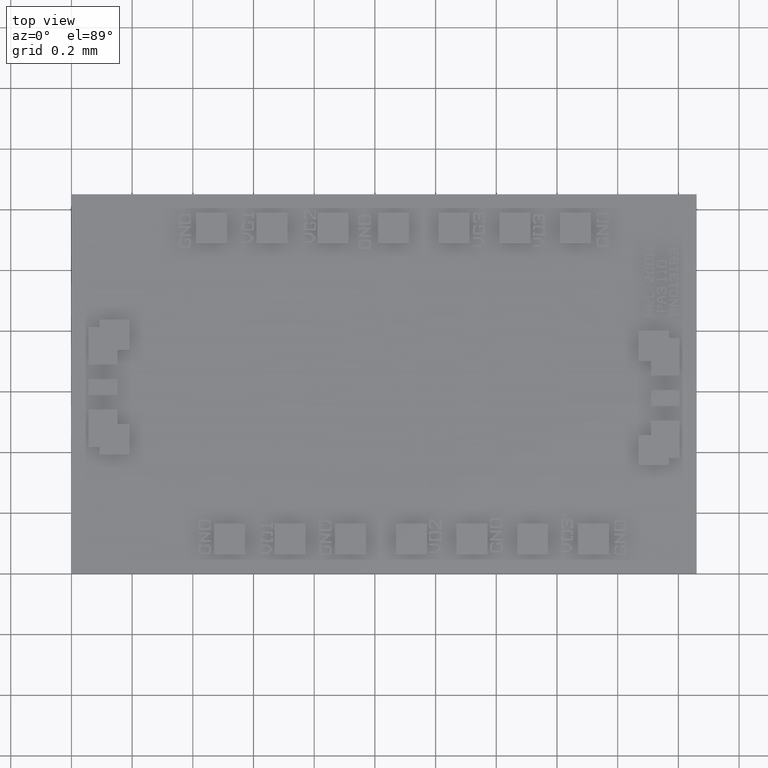
[diagram: clean part render]
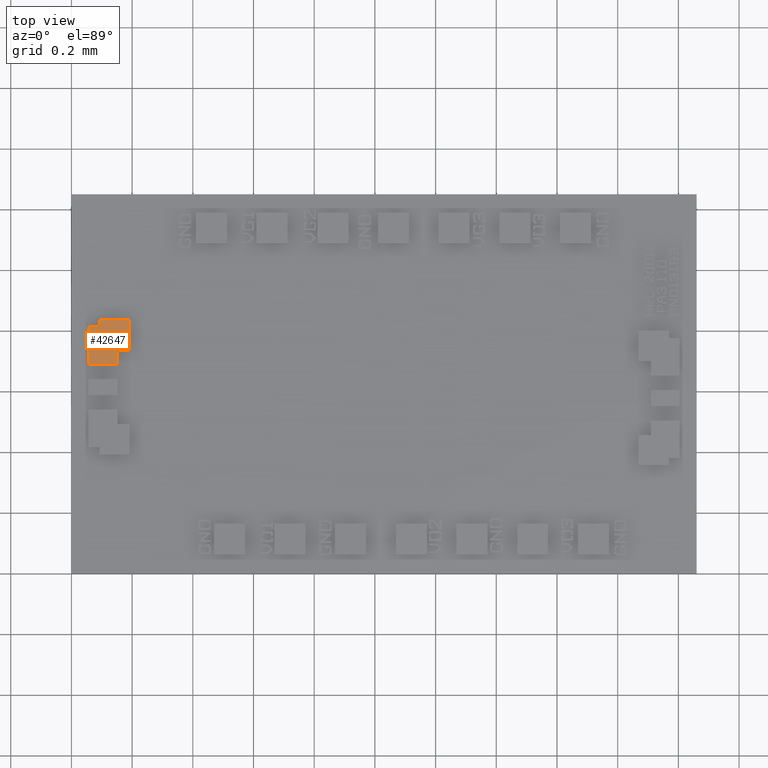
[diagram: same view with one face highlighted and labeled with its STEP entity id]
A machine part, top view. The second image highlights one B-rep face of the part: STEP entity #42647.
In plain terms, the highlighted planar face has unit normal (0, 0, 1).
Its self-contained STEP definition (entity closure, byte-faithful):
#585=CARTESIAN_POINT('',(0.002232283464567,0.031968503937008,0.002047244094488));
#586=VERTEX_POINT('',#585);
#593=CARTESIAN_POINT('',(0.003610236220472,0.031968503937008,0.002047244094488));
#594=VERTEX_POINT('',#593);
#595=CARTESIAN_POINT('',(0.003610236220472,0.031968503937008,0.002047244094488));
#596=DIRECTION('',(-1.0,0.0,0.0));
#597=VECTOR('',#596,0.001377952755906);
#598=LINE('',#595,#597);
#599=EDGE_CURVE('',#594,#586,#598,.T.);
#623=CARTESIAN_POINT('',(0.002232283464567,0.027086614173228,0.002047244094488));
#624=VERTEX_POINT('',#623);
#631=CARTESIAN_POINT('',(0.002232283464567,0.031968503937008,0.002047244094488));
#632=DIRECTION('',(0.0,-1.0,0.0));
#633=VECTOR('',#632,0.004881889763780);
#634=LINE('',#631,#633);
#635=EDGE_CURVE('',#586,#624,#634,.T.);
#654=CARTESIAN_POINT('',(0.005952755905512,0.027086614173228,0.002047244094488));
#655=VERTEX_POINT('',#654);
#662=CARTESIAN_POINT('',(0.002232283464567,0.027086614173228,0.002047244094488));
#663=DIRECTION('',(1.0,0.0,0.0));
#664=VECTOR('',#663,0.003720472440945);
#665=LINE('',#662,#664);
#666=EDGE_CURVE('',#624,#655,#665,.T.);
#685=CARTESIAN_POINT('',(0.005952755905512,0.028976377952756,0.002047244094488));
#686=VERTEX_POINT('',#685);
#693=CARTESIAN_POINT('',(0.005952755905512,0.027086614173228,0.002047244094488));
#694=DIRECTION('',(0.0,1.0,0.0));
#695=VECTOR('',#694,0.001889763779528);
#696=LINE('',#693,#695);
#697=EDGE_CURVE('',#655,#686,#696,.T.);
#716=CARTESIAN_POINT('',(0.007547244094488,0.028976377952756,0.002047244094488));
#717=VERTEX_POINT('',#716);
#724=CARTESIAN_POINT('',(0.005952755905512,0.028976377952756,0.002047244094488));
#725=DIRECTION('',(1.0,0.0,0.0));
#726=VECTOR('',#725,0.001594488188976);
#727=LINE('',#724,#726);
#728=EDGE_CURVE('',#686,#717,#727,.T.);
#747=CARTESIAN_POINT('',(0.007547244094488,0.032913385826772,0.002047244094488));
#748=VERTEX_POINT('',#747);
#755=CARTESIAN_POINT('',(0.007547244094488,0.028976377952756,0.002047244094488));
#756=DIRECTION('',(0.0,1.0,0.0));
#757=VECTOR('',#756,0.003937007874016);
#758=LINE('',#755,#757);
#759=EDGE_CURVE('',#717,#748,#758,.T.);
#778=CARTESIAN_POINT('',(0.003610236220472,0.032913385826772,0.002047244094488));
#779=VERTEX_POINT('',#778);
#786=CARTESIAN_POINT('',(0.007547244094488,0.032913385826772,0.002047244094488));
#787=DIRECTION('',(-1.0,0.0,0.0));
#788=VECTOR('',#787,0.003937007874016);
#789=LINE('',#786,#788);
#790=EDGE_CURVE('',#748,#779,#789,.T.);
#808=CARTESIAN_POINT('',(0.003610236220472,0.032913385826772,0.002047244094488));
#809=DIRECTION('',(0.0,-1.0,0.0));
#810=VECTOR('',#809,0.000944881889764);
#811=LINE('',#808,#810);
#812=EDGE_CURVE('',#779,#594,#811,.T.);
#42632=CARTESIAN_POINT('',(0.040551181102362,0.024606299212598,0.002047244094488));
#42633=DIRECTION('',(0.0,0.0,1.0));
#42634=DIRECTION('',(1.0,0.0,0.0));
#42635=AXIS2_PLACEMENT_3D('',#42632,#42633,#42634);
#42636=PLANE('',#42635);
#42637=ORIENTED_EDGE('',*,*,#599,.T.);
#42638=ORIENTED_EDGE('',*,*,#635,.T.);
#42639=ORIENTED_EDGE('',*,*,#666,.T.);
#42640=ORIENTED_EDGE('',*,*,#697,.T.);
#42641=ORIENTED_EDGE('',*,*,#728,.T.);
#42642=ORIENTED_EDGE('',*,*,#759,.T.);
#42643=ORIENTED_EDGE('',*,*,#790,.T.);
#42644=ORIENTED_EDGE('',*,*,#812,.T.);
#42645=EDGE_LOOP('',(#42637,#42638,#42639,#42640,#42641,#42642,#42643,#42644));
#42646=FACE_OUTER_BOUND('',#42645,.T.);
#42647=ADVANCED_FACE('',(#42646),#42636,.T.);